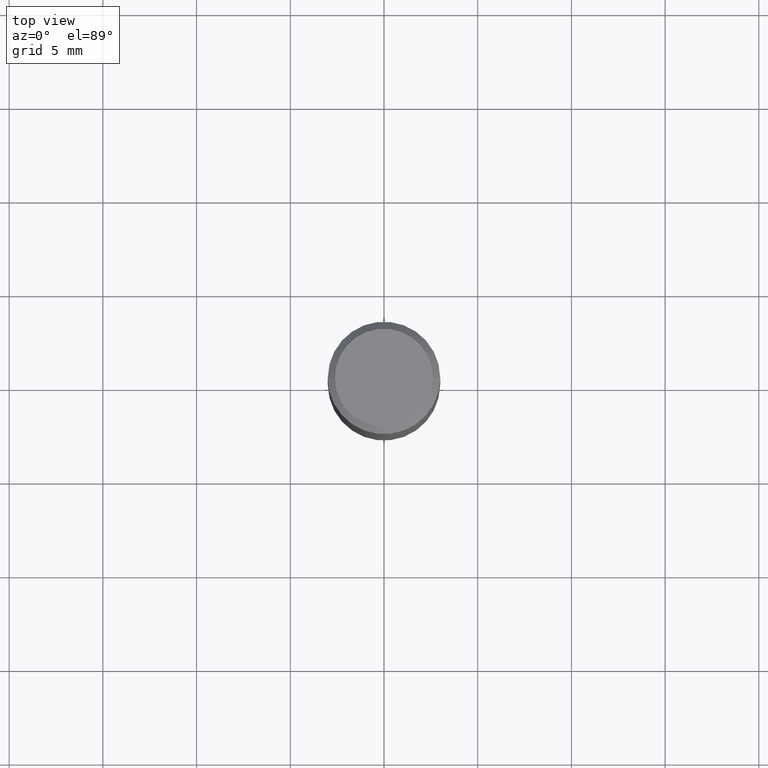
[diagram: clean part render]
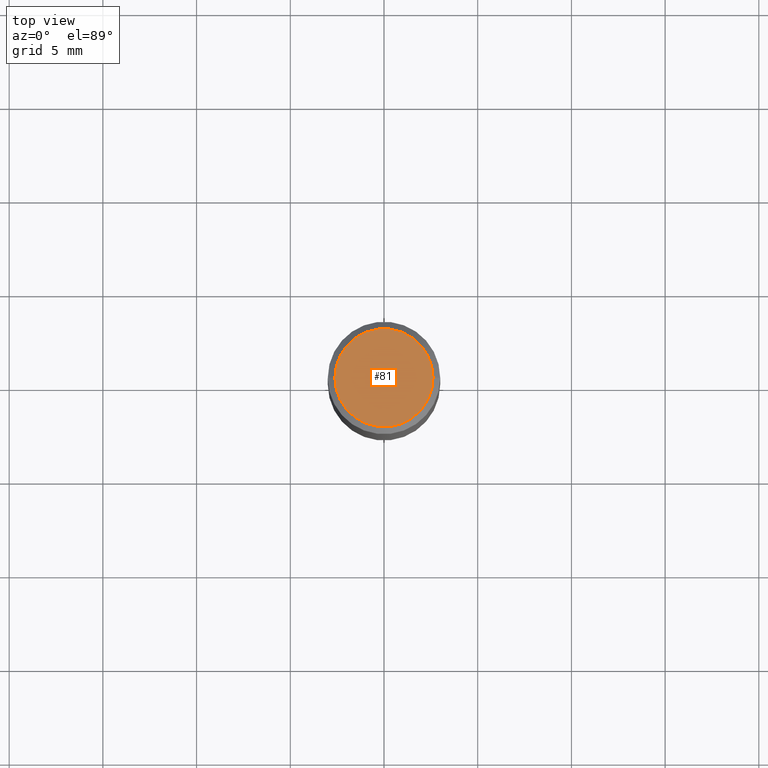
[diagram: same view with one face highlighted and labeled with its STEP entity id]
A machine part, top view. The second image highlights one B-rep face of the part: STEP entity #81.
In plain terms, the highlighted planar face has unit normal (0, -0, -1).
Its self-contained STEP definition (entity closure, byte-faithful):
#20 = CARTESIAN_POINT ( 'NONE',  ( 0.1031000000000000111, -7.849571885948552706E-16, -1.900413116462238423E-16 ) ) ;
#37 = EDGE_LOOP ( 'NONE', ( #128, #173 ) ) ;
#46 = CARTESIAN_POINT ( 'NONE',  ( 7.199434520694541042E-16, 0.1031000000000000111, -4.549923818578428559E-16 ) ) ;
#51 = DIRECTION ( 'NONE',  ( -2.445468806185136597E-29, 3.491481338843145583E-15, 1.000000000000000000 ) ) ;
#59 = CARTESIAN_POINT ( 'NONE',  ( 4.647400995173613138E-45, -6.635256932220833331E-31, -1.900413116462290932E-16 ) ) ;
#79 = VERTEX_POINT ( 'NONE', #304 ) ;
#81 = ADVANCED_FACE ( 'NONE', ( #378 ), #158, .F. ) ;
#128 = ORIENTED_EDGE ( 'NONE', *, *, #159, .T. ) ;
#158 = PLANE ( 'NONE',  #223 ) ;
#159 = EDGE_CURVE ( 'NONE', #79, #461, #307, .T. ) ;
#173 = ORIENTED_EDGE ( 'NONE', *, *, #238, .T. ) ;
#187 = AXIS2_PLACEMENT_3D ( 'NONE', #229, #51, #200 ) ;
#193 = DIRECTION ( 'NONE',  ( 2.438088387897960049E-29, -3.491481338843145188E-15, -1.000000000000000000 ) ) ;
#200 = DIRECTION ( 'NONE',  ( 1.000000000000000000, -6.982962677686265922E-15, 4.883331232093008327E-29 ) ) ;
#223 = AXIS2_PLACEMENT_3D ( 'NONE', #46, #193, #441 ) ;
#229 = CARTESIAN_POINT ( 'NONE',  ( 4.647400995173613138E-45, -6.635256932220833331E-31, -1.900413116462290932E-16 ) ) ;
#238 = EDGE_CURVE ( 'NONE', #461, #79, #351, .T. ) ;
#304 = CARTESIAN_POINT ( 'NONE',  ( -0.1031000000000000111, 7.461295621107772493E-16, -1.900413116462341961E-16 ) ) ;
#307 = CIRCLE ( 'NONE', #187, 0.1031000000000000111 ) ;
#346 = AXIS2_PLACEMENT_3D ( 'NONE', #59, #434, #387 ) ;
#351 = CIRCLE ( 'NONE', #346, 0.1031000000000000111 ) ;
#378 = FACE_OUTER_BOUND ( 'NONE', #37, .T. ) ;
#387 = DIRECTION ( 'NONE',  ( 1.000000000000000000, -6.982962677686265922E-15, 4.883331232093008327E-29 ) ) ;
#434 = DIRECTION ( 'NONE',  ( -2.445468806185136597E-29, 3.491481338843145583E-15, 1.000000000000000000 ) ) ;
#441 = DIRECTION ( 'NONE',  ( -1.000000000000000000, 6.982962677686265922E-15, -4.876176775795935793E-29 ) ) ;
#461 = VERTEX_POINT ( 'NONE', #20 ) ;